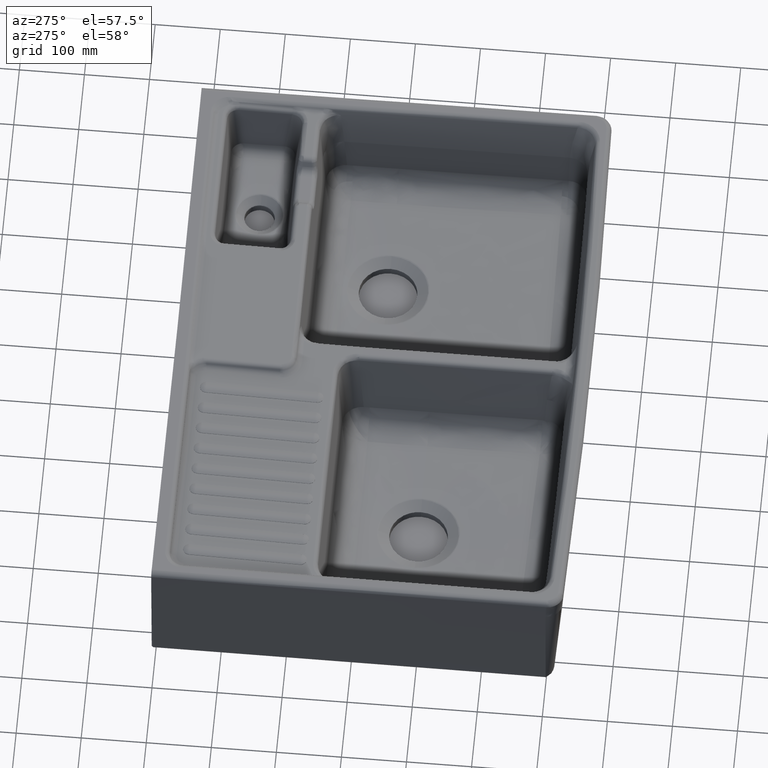
[diagram: clean part render]
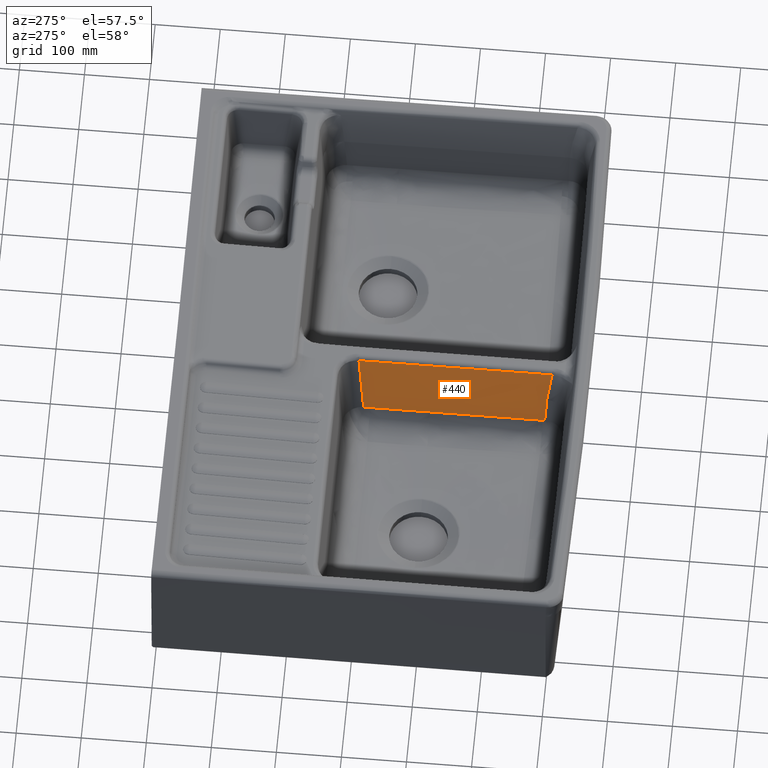
[diagram: same view with one face highlighted and labeled with its STEP entity id]
A machine part, auxiliary view. The second image highlights one B-rep face of the part: STEP entity #440.
In plain terms, the highlighted face is a freeform B-spline surface patch.
Its self-contained STEP definition (entity closure, byte-faithful):
#440=ADVANCED_FACE('',(#1299),#871,.T.);
#871=B_SPLINE_SURFACE_WITH_KNOTS('',2,1,((#26063,#26064),(#26065,#26066),
(#26067,#26068)),.UNSPECIFIED.,.F.,.F.,.F.,(3,3),(2,2),(0.,1.),(0.,1.),
 .UNSPECIFIED.);
#1299=FACE_OUTER_BOUND('',#1750,.T.);
#1750=EDGE_LOOP('',(#3232,#3233,#3234,#3235,#3236,#3237,#3238,#3239,#3240,
#3241,#3242));
#3232=ORIENTED_EDGE('',*,*,#5823,.F.);
#3233=ORIENTED_EDGE('',*,*,#5824,.F.);
#3234=ORIENTED_EDGE('',*,*,#5825,.F.);
#3235=ORIENTED_EDGE('',*,*,#5826,.F.);
#3236=ORIENTED_EDGE('',*,*,#5802,.T.);
#3237=ORIENTED_EDGE('',*,*,#5505,.T.);
#3238=ORIENTED_EDGE('',*,*,#5538,.T.);
#3239=ORIENTED_EDGE('',*,*,#5509,.T.);
#3240=ORIENTED_EDGE('',*,*,#5512,.T.);
#3241=ORIENTED_EDGE('',*,*,#5514,.T.);
#3242=ORIENTED_EDGE('',*,*,#5518,.T.);
#4605=VERTEX_POINT('',#17971);
#4612=VERTEX_POINT('',#18155);
#4614=VERTEX_POINT('',#18196);
#4615=VERTEX_POINT('',#18199);
#4617=VERTEX_POINT('',#18267);
#4618=VERTEX_POINT('',#18299);
#4620=VERTEX_POINT('',#18404);
#4780=VERTEX_POINT('',#25149);
#4793=VERTEX_POINT('',#26048);
#4794=VERTEX_POINT('',#26053);
#4795=VERTEX_POINT('',#26058);
#5505=EDGE_CURVE('',#4612,#4605,#6700,.T.);
#5509=EDGE_CURVE('',#4615,#4614,#6704,.T.);
#5512=EDGE_CURVE('',#4614,#4617,#6707,.T.);
#5514=EDGE_CURVE('',#4617,#4618,#6709,.T.);
#5518=EDGE_CURVE('',#4618,#4620,#6713,.T.);
#5538=EDGE_CURVE('',#4605,#4615,#6733,.T.);
#5802=EDGE_CURVE('',#4780,#4612,#6997,.T.);
#5823=EDGE_CURVE('',#4793,#4620,#7018,.T.);
#5824=EDGE_CURVE('',#4794,#4793,#7019,.T.);
#5825=EDGE_CURVE('',#4795,#4794,#7020,.T.);
#5826=EDGE_CURVE('',#4780,#4795,#7021,.T.);
#6700=B_SPLINE_CURVE_WITH_KNOTS('',3,(#18151,#18152,#18153,#18154),
 .UNSPECIFIED.,.F.,.F.,(4,4),(0.,1.),.UNSPECIFIED.);
#6704=B_SPLINE_CURVE_WITH_KNOTS('',1,(#18197,#18198),.UNSPECIFIED.,.F.,
 .F.,(2,2),(0.,1.),.UNSPECIFIED.);
#6707=B_SPLINE_CURVE_WITH_KNOTS('',1,(#18265,#18266),.UNSPECIFIED.,.F.,
 .F.,(2,2),(0.,1.),.UNSPECIFIED.);
#6709=B_SPLINE_CURVE_WITH_KNOTS('',1,(#18297,#18298),.UNSPECIFIED.,.F.,
 .F.,(2,2),(0.,1.),.UNSPECIFIED.);
#6713=B_SPLINE_CURVE_WITH_KNOTS('',1,(#18405,#18406),.UNSPECIFIED.,.F.,
 .F.,(2,2),(0.,1.),.UNSPECIFIED.);
#6733=B_SPLINE_CURVE_WITH_KNOTS('',3,(#18929,#18930,#18931,#18932,#18933,
#18934,#18935,#18936,#18937,#18938,#18939,#18940,#18941,#18942,#18943,#18944,
#18945,#18946,#18947,#18948,#18949,#18950,#18951,#18952,#18953),
 .UNSPECIFIED.,.F.,.F.,(4,2,1,1,1,1,1,1,1,1,1,1,1,1,1,1,1,1,1,2,4),(0.,
0.000976562499999993,0.00195312499999999,0.00390624999999996,0.00781249999999983,
0.0156249999999997,0.0312499999999995,0.0624999999999995,0.124999999999999,
0.249999999999999,0.499999999999999,0.749999999999999,0.874999999999999,
0.937499999999999,0.968749999999999,0.984375,0.9921875,0.99609375,0.998046875,
0.9990234375,1.),.UNSPECIFIED.);
#6997=B_SPLINE_CURVE_WITH_KNOTS('',1,(#25147,#25148),.UNSPECIFIED.,.F.,
 .F.,(2,2),(0.,1.),.UNSPECIFIED.);
#7018=B_SPLINE_CURVE_WITH_KNOTS('',3,(#26044,#26045,#26046,#26047),
 .UNSPECIFIED.,.F.,.F.,(4,4),(0.,1.),.UNSPECIFIED.);
#7019=B_SPLINE_CURVE_WITH_KNOTS('',3,(#26049,#26050,#26051,#26052),
 .UNSPECIFIED.,.F.,.F.,(4,4),(0.,1.),.UNSPECIFIED.);
#7020=B_SPLINE_CURVE_WITH_KNOTS('',3,(#26054,#26055,#26056,#26057),
 .UNSPECIFIED.,.F.,.F.,(4,4),(0.,1.),.UNSPECIFIED.);
#7021=B_SPLINE_CURVE_WITH_KNOTS('',3,(#26059,#26060,#26061,#26062),
 .UNSPECIFIED.,.F.,.F.,(4,4),(0.,1.),.UNSPECIFIED.);
#17971=CARTESIAN_POINT('',(-11.9822460877944,24.5191564784086,-29.8551567258973));
#18151=CARTESIAN_POINT('',(-11.985535172823,18.30679,-29.8741006861965));
#18152=CARTESIAN_POINT('',(-11.9846323449837,20.3777453284324,-29.8677495760826));
#18153=CARTESIAN_POINT('',(-11.983729496107,22.4487006568648,-29.8613984685008));
#18154=CARTESIAN_POINT('',(-11.9828266261929,24.5196559852972,-29.8550473634513));
#18155=CARTESIAN_POINT('',(-11.9855719847746,18.3066885686877,-29.8743390671258));
#18196=CARTESIAN_POINT('',(-25.4788762389212,7.0504107499644,-139.741866236764));
#18197=CARTESIAN_POINT('',(-25.4788738189283,16.0782631552725,-139.741866487444));
#18198=CARTESIAN_POINT('',(-25.4788738189283,7.05035149992871,-139.741866487444));
#18199=CARTESIAN_POINT('',(-25.4782996977863,16.0782760589866,-139.741500521571));
#18265=CARTESIAN_POINT('',(-25.4788738189283,7.05035149992871,-139.741866487444));
#18266=CARTESIAN_POINT('',(-25.4788738189283,-84.9990544999821,-139.741866487444));
#18267=CARTESIAN_POINT('',(-25.4788762378535,-84.9995322502204,-139.741866236875));
#18297=CARTESIAN_POINT('',(-25.4788738189283,-84.9990544999821,-139.741866487444));
#18298=CARTESIAN_POINT('',(-25.4788738189283,-251.84064,-139.741866487444));
#18299=CARTESIAN_POINT('',(-25.4788745338734,-251.841150013352,-139.741866413238));
#18404=CARTESIAN_POINT('',(-25.4788342059478,-258.549871116725,-139.741438157465));
#18405=CARTESIAN_POINT('',(-25.4788738189283,-251.84064,-139.741866487444));
#18406=CARTESIAN_POINT('',(-25.4788738189283,-258.54987300001,-139.741866487444));
#18929=CARTESIAN_POINT('',(-11.9828266261929,24.5196559852972,-29.8550473634513));
#18930=CARTESIAN_POINT('',(-11.9929838309352,24.5128729024143,-29.9264967199078));
#18931=CARTESIAN_POINT('',(-11.9931508997496,24.5127614658831,-29.927676914676));
#18932=CARTESIAN_POINT('',(-12.0033053924192,24.5059808700196,-29.9991264526631));
#18933=CARTESIAN_POINT('',(-12.0185351191947,24.4958118622559,-30.1063008919544));
#18934=CARTESIAN_POINT('',(-12.0540570628191,24.4720973796961,-30.3563755097987));
#18935=CARTESIAN_POINT('',(-12.1250446086712,24.4247212234637,-30.8565284500646));
#18936=CARTESIAN_POINT('',(-12.2667943401997,24.3301801465482,-31.8568491482538));
#18937=CARTESIAN_POINT('',(-12.5493924058439,24.1419429349151,-33.8575498100512));
#18938=CARTESIAN_POINT('',(-13.1109832937906,23.7688482804395,-37.8591881536378));
#18939=CARTESIAN_POINT('',(-14.2197468666562,23.0361780466519,-45.8634125873191));
#18940=CARTESIAN_POINT('',(-16.379623360752,21.6249138797297,-61.875649773312));
#18941=CARTESIAN_POINT('',(-19.3005716801355,19.7633259288496,-84.7610828515235));
#18942=CARTESIAN_POINT('',(-22.0024047853426,18.1077429328388,-107.660886675759));
#18943=CARTESIAN_POINT('',(-23.7788295614678,17.0569874369373,-123.698272678507));
#18944=CARTESIAN_POINT('',(-24.6383494760906,16.5586478393132,-131.718843848082));
#18945=CARTESIAN_POINT('',(-25.0609390804983,16.3162375780827,-135.729598642049));
#18946=CARTESIAN_POINT('',(-25.2704416401233,16.1967223318629,-137.735093299722));
#18947=CARTESIAN_POINT('',(-25.3747449024948,16.137387179852,-138.737869938531));
#18948=CARTESIAN_POINT('',(-25.4267845347207,16.1078252216211,-139.239265584778));
#18949=CARTESIAN_POINT('',(-25.4527763517686,16.0930706469494,-139.489965239532));
#18950=CARTESIAN_POINT('',(-25.4639097022048,16.0867529158994,-139.597408341195));
#18951=CARTESIAN_POINT('',(-25.4713306025641,16.0825423525539,-139.669037162855));
#18952=CARTESIAN_POINT('',(-25.471455614546,16.082471232003,-139.670237486168));
#18953=CARTESIAN_POINT('',(-25.4788738189283,16.0782631552725,-139.741866487444));
#25147=CARTESIAN_POINT('',(-11.9855963936015,-272.430791855226,-29.8745313553642));
#25148=CARTESIAN_POINT('',(-11.9855963936015,18.306396,-29.8745313553642));
#25149=CARTESIAN_POINT('',(-11.9855475988498,-272.431333110802,-29.8742982402673));
#26044=CARTESIAN_POINT('',(-25.4788000228423,-262.106099884463,-139.741009961971));
#26045=CARTESIAN_POINT('',(-25.4787049430108,-260.920804993584,-139.741177068538));
#26046=CARTESIAN_POINT('',(-25.4789063970559,-259.735470658509,-139.741652130043));
#26047=CARTESIAN_POINT('',(-25.4788857869558,-258.549875999551,-139.74186514677));
#26048=CARTESIAN_POINT('',(-25.4788344861934,-262.105942155609,-139.741396039235));
#26049=CARTESIAN_POINT('',(-19.8245598860543,-264.831485413197,-89.4184765334836));
#26050=CARTESIAN_POINT('',(-21.8705337297542,-263.612371600071,-106.303176253323));
#26051=CARTESIAN_POINT('',(-23.749268668543,-262.816198927224,-123.039113193147));
#26052=CARTESIAN_POINT('',(-25.4788519579277,-262.106117087499,-139.741467933501));
#26053=CARTESIAN_POINT('',(-19.8245628897129,-264.83148243377,-89.4185180242283));
#26054=CARTESIAN_POINT('',(-12.6214479730328,-271.520567940507,-34.3726864672169));
#26055=CARTESIAN_POINT('',(-15.1697717683079,-267.996134341362,-52.5010527738953));
#26056=CARTESIAN_POINT('',(-17.5643590610972,-266.178742488799,-70.7658528432387));
#26057=CARTESIAN_POINT('',(-19.824559886047,-264.831485412351,-89.418476533424));
#26058=CARTESIAN_POINT('',(-12.6214459087383,-271.520567970089,-34.372686601875));
#26059=CARTESIAN_POINT('',(-11.9854957980314,-272.430889839402,-29.874071547136));
#26060=CARTESIAN_POINT('',(-12.1984785240428,-272.115469162966,-31.3722494098552));
#26061=CARTESIAN_POINT('',(-12.4104690315817,-271.812172245134,-32.8718161519499));
#26062=CARTESIAN_POINT('',(-12.6214479299184,-271.520568000009,-34.3726861605076));
#26063=CARTESIAN_POINT('',(-2.8832,178.39998,29.72806));
#26064=CARTESIAN_POINT('',(-2.8832,-350.80002,29.72806));
#26065=CARTESIAN_POINT('',(-21.2188,178.39998,-82.54668));
#26066=CARTESIAN_POINT('',(-21.2188,-350.80002,-82.54668));
#26067=CARTESIAN_POINT('',(-30.74455,178.39998,-195.88184));
#26068=CARTESIAN_POINT('',(-30.74455,-350.80002,-195.88184));